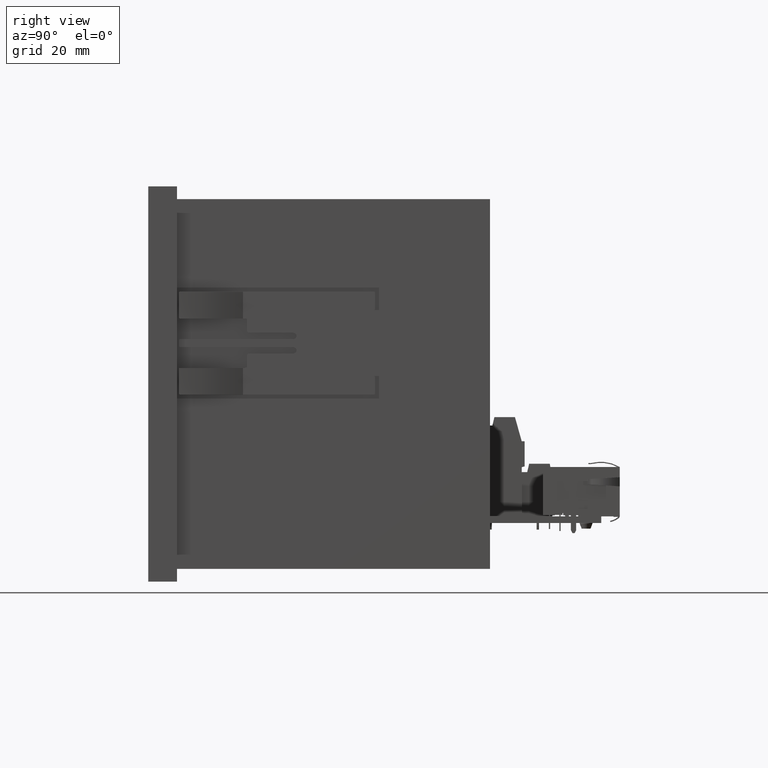
[diagram: clean part render]
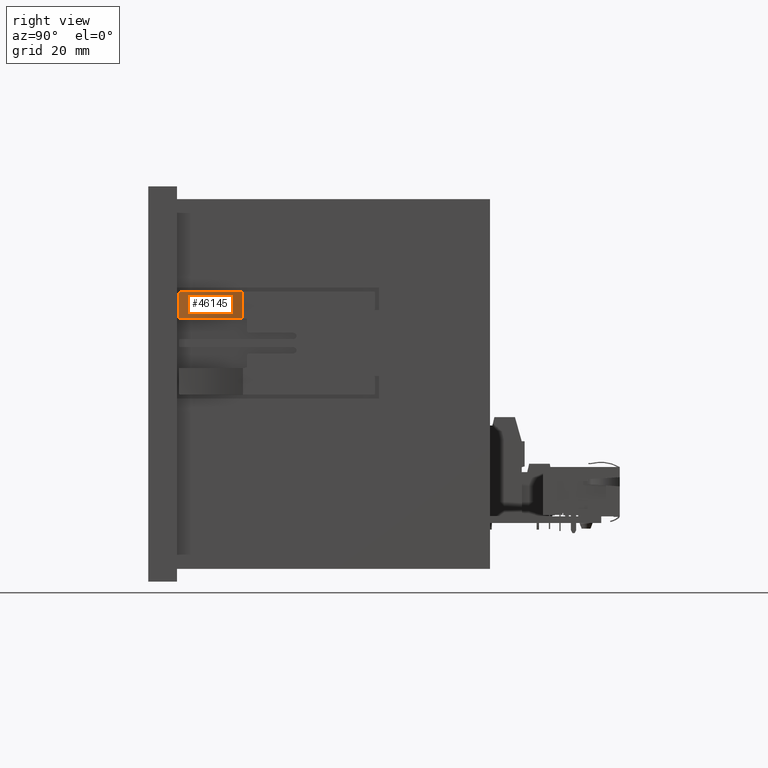
[diagram: same view with one face highlighted and labeled with its STEP entity id]
A machine part, right view. The second image highlights one B-rep face of the part: STEP entity #46145.
In plain terms, the highlighted cylindrical surface (partial cylindrical patch) has radius 50 mm, axis along (-0, -0, -1).
Its self-contained STEP definition (entity closure, byte-faithful):
#45991=CARTESIAN_POINT('',(-76.974848406077427,-78.372143393853065,3.500000000000000));
#45992=VERTEX_POINT('',#45991);
#45993=CARTESIAN_POINT('',(-76.774848406077425,-78.572143393853068,3.493068063186549));
#45994=VERTEX_POINT('',#45993);
#45995=CARTESIAN_POINT('',(-76.974848406077427,-78.372143393853065,3.500000000000000));
#45996=CARTESIAN_POINT('',(-76.949736957239494,-78.372143393853065,3.500000000000000));
#45997=CARTESIAN_POINT('',(-76.922952630215235,-78.377161819387737,3.499836907714318));
#45998=CARTESIAN_POINT('',(-76.873682733819507,-78.397568216114649,3.499164289651506));
#45999=CARTESIAN_POINT('',(-76.851197148018201,-78.412956111997318,3.498653683013847));
#46000=CARTESIAN_POINT('',(-76.815677911659918,-78.448467004257481,3.497452370945204));
#46001=CARTESIAN_POINT('',(-76.800281573841701,-78.470961396272202,3.496681248520652));
#46002=CARTESIAN_POINT('',(-76.779866883074462,-78.520243670969450,3.494949979233098));
#46003=CARTESIAN_POINT('',(-76.774848406077425,-78.547031464332136,3.493988752707550));
#46004=CARTESIAN_POINT('',(-76.774848406077425,-78.572143393853068,3.493068063186549));
#46005=B_SPLINE_CURVE_WITH_KNOTS('',3,(#45995,#45996,#45997,#45998,#45999,#46000,#46001,#46002,#46003,#46004),.UNSPECIFIED.,.F.,.U.,(4,2,2,2,4),(1.205803795454174,1.281138141967968,1.356472488481763,1.431858893497012,1.507245298512260),.UNSPECIFIED.);
#46006=EDGE_CURVE('',#45992,#45994,#46005,.T.);
#46046=CARTESIAN_POINT('',(-76.774848406077425,-93.789754548061083,0.529966726762794));
#46047=VERTEX_POINT('',#46046);
#46048=CARTESIAN_POINT('',(-76.774848406077425,-76.740202633151583,-46.473360596957662));
#46049=DIRECTION('',(1.0,0.0,0.0));
#46050=DIRECTION('',(0.0,1.0,0.0));
#46051=AXIS2_PLACEMENT_3D('',#46048,#46049,#46050);
#46052=CIRCLE('',#46051,50.0);
#46053=EDGE_CURVE('',#45994,#46047,#46052,.T.);
#46098=CARTESIAN_POINT('',(-76.774848406077425,-76.740202633151583,-46.473360596957662));
#46099=DIRECTION('',(-1.0,0.0,0.0));
#46100=DIRECTION('',(0.0,1.0,0.0));
#46101=AXIS2_PLACEMENT_3D('',#46098,#46099,#46100);
#46102=CYLINDRICAL_SURFACE('',#46101,50.0);
#46103=ORIENTED_EDGE('',*,*,#46006,.F.);
#46104=CARTESIAN_POINT('',(-83.074848406077422,-78.372143393853065,3.500000000000000));
#46105=VERTEX_POINT('',#46104);
#46106=CARTESIAN_POINT('',(-76.974848406077427,-78.372143393853065,3.500000000000000));
#46107=DIRECTION('',(-1.0,0.0,0.0));
#46108=VECTOR('',#46107,6.099999999999994);
#46109=LINE('',#46106,#46108);
#46110=EDGE_CURVE('',#45992,#46105,#46109,.T.);
#46111=ORIENTED_EDGE('',*,*,#46110,.T.);
#46112=CARTESIAN_POINT('',(-83.274848406077425,-78.572143393853054,3.493068063186549));
#46113=VERTEX_POINT('',#46112);
#46114=CARTESIAN_POINT('',(-83.274848406077425,-78.572143393853054,3.493068063186549));
#46115=CARTESIAN_POINT('',(-83.274848406077425,-78.547031464332122,3.493988752707550));
#46116=CARTESIAN_POINT('',(-83.269829929080416,-78.520243670969464,3.494949979233098));
#46117=CARTESIAN_POINT('',(-83.249415238313176,-78.470961396272216,3.496681248520652));
#46118=CARTESIAN_POINT('',(-83.234018900494945,-78.448467004257481,3.497452370945204));
#46119=CARTESIAN_POINT('',(-83.198499664136676,-78.412956111997318,3.498653683013847));
#46120=CARTESIAN_POINT('',(-83.176014078335342,-78.397568216114649,3.499164289651506));
#46121=CARTESIAN_POINT('',(-83.126744181939600,-78.377161819387723,3.499836907714318));
#46122=CARTESIAN_POINT('',(-83.099959854915355,-78.372143393853051,3.500000000000007));
#46123=CARTESIAN_POINT('',(-83.074848406077422,-78.372143393853051,3.500000000000007));
#46124=B_SPLINE_CURVE_WITH_KNOTS('',3,(#46114,#46115,#46116,#46117,#46118,#46119,#46120,#46121,#46122,#46123),.UNSPECIFIED.,.F.,.U.,(4,2,2,2,4),(0.904362292396086,0.979748697411325,1.055135102426564,1.130469448940368,1.205803795454173),.UNSPECIFIED.);
#46125=EDGE_CURVE('',#46113,#46105,#46124,.T.);
#46126=ORIENTED_EDGE('',*,*,#46125,.F.);
#46127=CARTESIAN_POINT('',(-83.274848406077425,-93.789754548061083,0.529966726762794));
#46128=VERTEX_POINT('',#46127);
#46129=CARTESIAN_POINT('',(-83.274848406077425,-76.740202633151583,-46.473360596957662));
#46130=DIRECTION('',(1.0,0.0,0.0));
#46131=DIRECTION('',(0.0,1.0,0.0));
#46132=AXIS2_PLACEMENT_3D('',#46129,#46130,#46131);
#46133=CIRCLE('',#46132,50.0);
#46134=EDGE_CURVE('',#46113,#46128,#46133,.T.);
#46135=ORIENTED_EDGE('',*,*,#46134,.T.);
#46136=CARTESIAN_POINT('',(-76.774848406077425,-93.789754548061083,0.529966726762794));
#46137=DIRECTION('',(-1.0,0.0,0.0));
#46138=VECTOR('',#46137,6.500000000000000);
#46139=LINE('',#46136,#46138);
#46140=EDGE_CURVE('',#46047,#46128,#46139,.T.);
#46141=ORIENTED_EDGE('',*,*,#46140,.F.);
#46142=ORIENTED_EDGE('',*,*,#46053,.F.);
#46143=EDGE_LOOP('',(#46103,#46111,#46126,#46135,#46141,#46142));
#46144=FACE_OUTER_BOUND('',#46143,.T.);
#46145=ADVANCED_FACE('',(#46144),#46102,.T.);